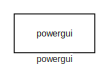
[diagram: root canvas - part 1/7, top center region]
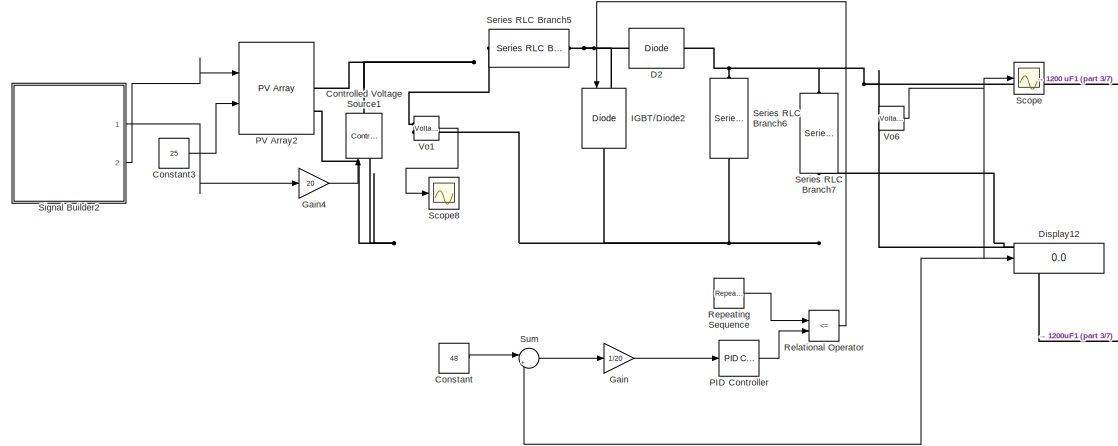
[diagram: root canvas - part 2/7, top left region]
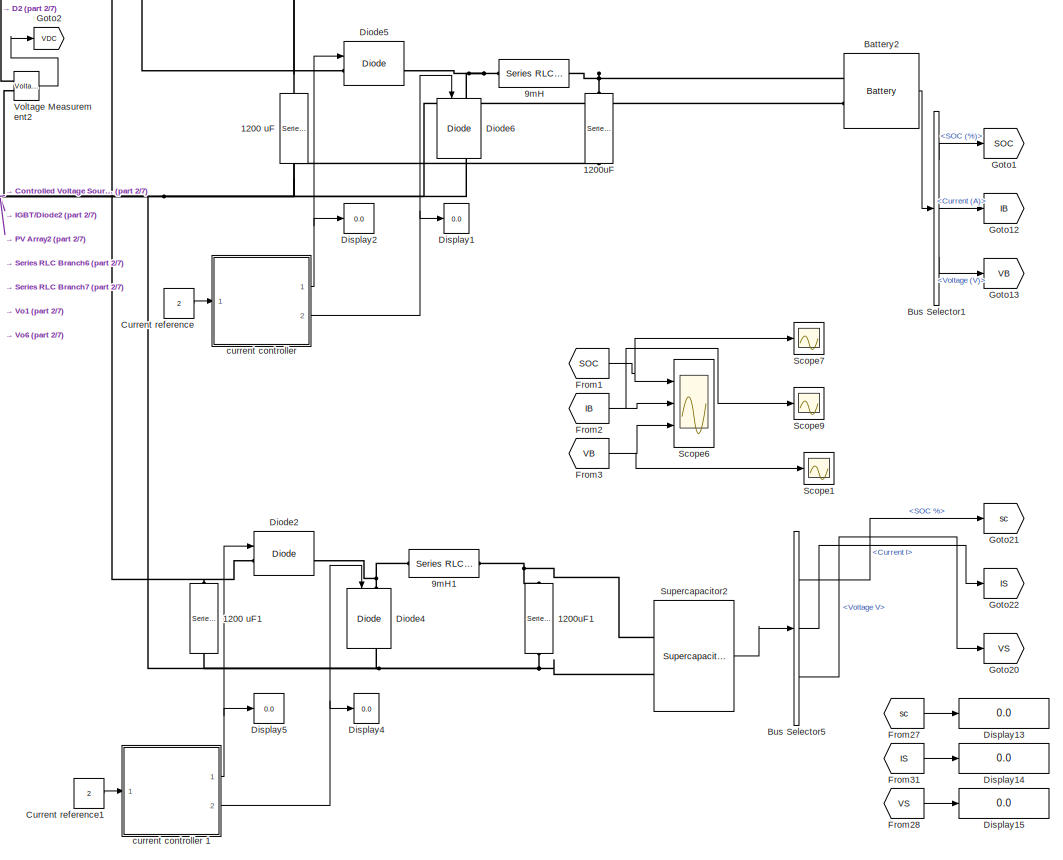
[diagram: root canvas - part 3/7, middle right region]
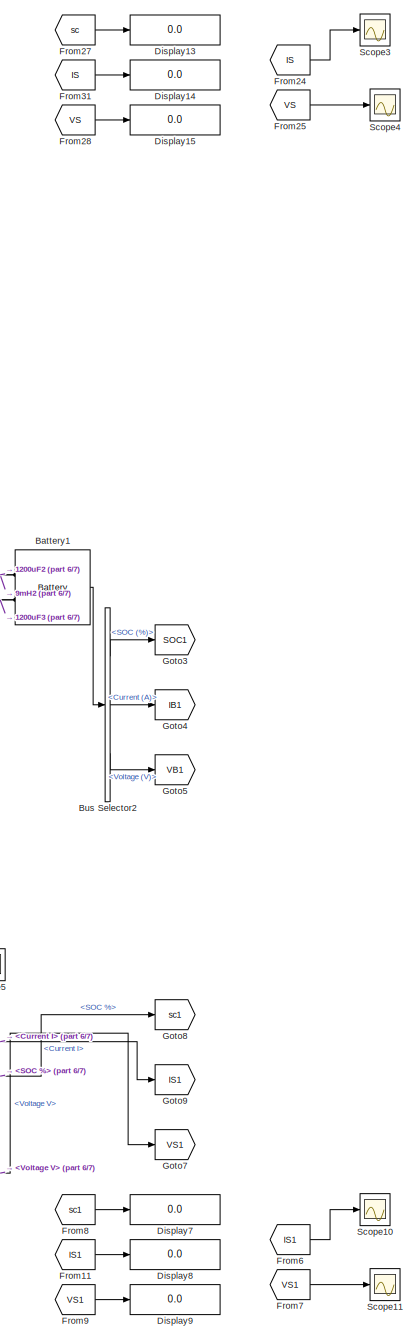
[diagram: root canvas - part 4/7, bottom right region]
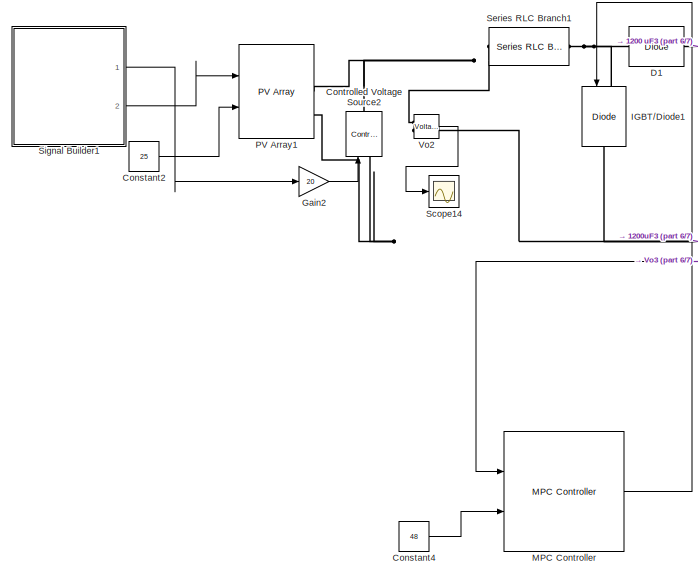
[diagram: root canvas - part 5/7, bottom left region]
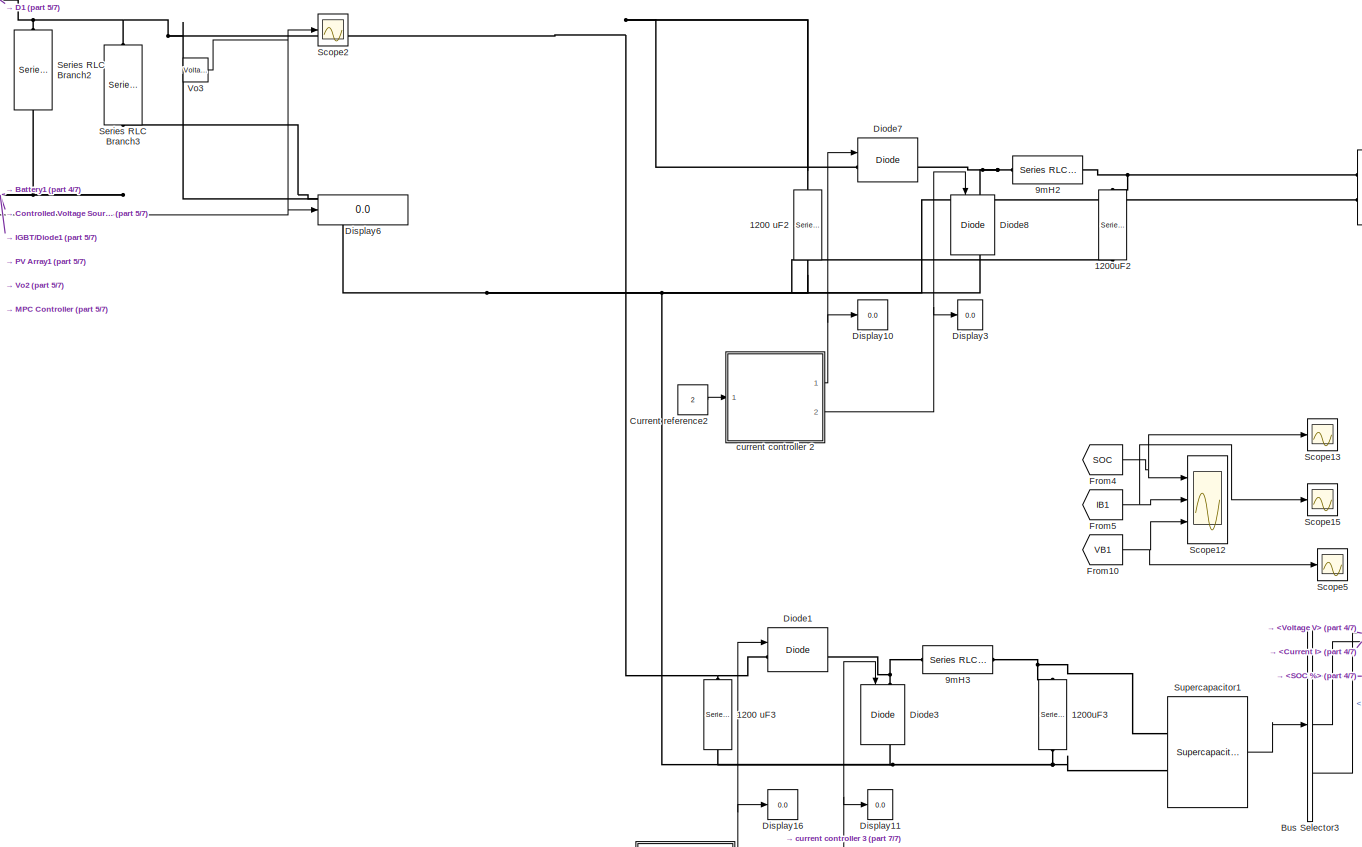
[diagram: root canvas - part 6/7, bottom center region]
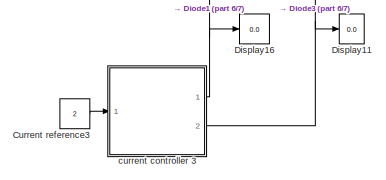
[diagram: root canvas - part 7/7, bottom center region]
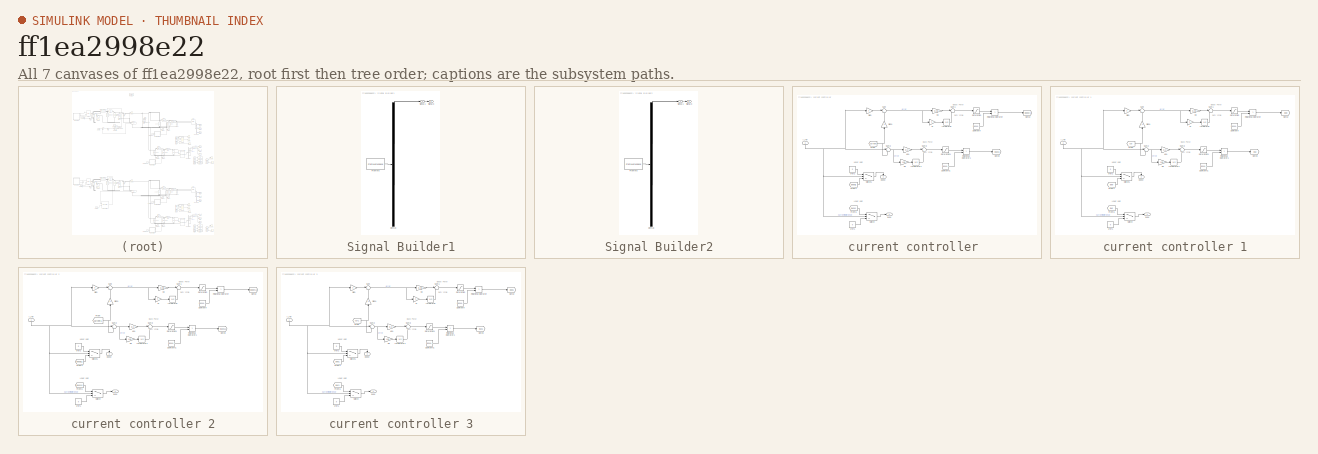
[diagram: thumbnail index - all 7 canvases of the model, root first then tree order]
MODEL slx_ff1ea2998e22
KIND model
CONFIG AbsTol = auto
CONFIG EnableMultiTasking = off
CONFIG FixedStep = auto
CONFIG MaxStep = auto
CONFIG MinStep = auto
CONFIG RelTol = 1e-3
CONFIG SampleTimeConstraint = Unconstrained
CONFIG Solver = VariableStepAuto
CONFIG SolverName = VariableStepAuto
CONFIG StartTime = 0.0
CONFIG StopTime = 2
BLOCK [Reference] 1200 uF  REF=powerlib/Elements/Series RLC Branch
  Ports = [0, 0, 0, 0, 0, 1, 1]
  SourceBlock = powerlib/Elements/Series RLC Branch
  SourceProductBaseCode = PS
  SourceProductName = Simscape Power Systems
  SourceType = Series RLC Branch
BLOCK [Reference] 1200 uF1  REF=powerlib/Elements/Series RLC Branch
  Ports = [0, 0, 0, 0, 0, 1, 1]
  SourceBlock = powerlib/Elements/Series RLC Branch
  SourceProductBaseCode = PS
  SourceProductName = Simscape Power Systems
  SourceType = Series RLC Branch
BLOCK [Reference] 1200 uF2  REF=powerlib/Elements/Series RLC Branch
  Ports = [0, 0, 0, 0, 0, 1, 1]
  SourceBlock = powerlib/Elements/Series RLC Branch
  SourceProductBaseCode = PS
  SourceProductName = Simscape Power Systems
  SourceType = Series RLC Branch
BLOCK [Reference] 1200 uF3  REF=powerlib/Elements/Series RLC Branch
  Ports = [0, 0, 0, 0, 0, 1, 1]
  SourceBlock = powerlib/Elements/Series RLC Branch
  SourceProductBaseCode = PS
  SourceProductName = Simscape Power Systems
  SourceType = Series RLC Branch
BLOCK [Reference] 1200uF  REF=powerlib/Elements/Series RLC Branch
  Ports = [0, 0, 0, 0, 0, 1, 1]
  SourceBlock = powerlib/Elements/Series RLC Branch
  SourceProductBaseCode = PS
  SourceProductName = Simscape Power Systems
  SourceType = Series RLC Branch
BLOCK [Reference] 1200uF1  REF=powerlib/Elements/Series RLC Branch
  Ports = [0, 0, 0, 0, 0, 1, 1]
  SourceBlock = powerlib/Elements/Series RLC Branch
  SourceProductBaseCode = PS
  SourceProductName = Simscape Power Systems
  SourceType = Series RLC Branch
BLOCK [Reference] 1200uF2  REF=powerlib/Elements/Series RLC Branch
  Ports = [0, 0, 0, 0, 0, 1, 1]
  SourceBlock = powerlib/Elements/Series RLC Branch
  SourceProductBaseCode = PS
  SourceProductName = Simscape Power Systems
  SourceType = Series RLC Branch
BLOCK [Reference] 1200uF3  REF=powerlib/Elements/Series RLC Branch
  Ports = [0, 0, 0, 0, 0, 1, 1]
  SourceBlock = powerlib/Elements/Series RLC Branch
  SourceProductBaseCode = PS
  SourceProductName = Simscape Power Systems
  SourceType = Series RLC Branch
BLOCK [Reference] 9mH  REF=powerlib/Elements/Series RLC Branch
  Ports = [0, 0, 0, 0, 0, 1, 1]
  SourceBlock = powerlib/Elements/Series RLC Branch
  SourceProductBaseCode = PS
  SourceProductName = Simscape Power Systems
  SourceType = Series RLC Branch
BLOCK [Reference] 9mH1  REF=powerlib/Elements/Series RLC Branch
  Ports = [0, 0, 0, 0, 0, 1, 1]
  SourceBlock = powerlib/Elements/Series RLC Branch
  SourceProductBaseCode = PS
  SourceProductName = Simscape Power Systems
  SourceType = Series RLC Branch
BLOCK [Reference] 9mH2  REF=powerlib/Elements/Series RLC Branch
  Ports = [0, 0, 0, 0, 0, 1, 1]
  SourceBlock = powerlib/Elements/Series RLC Branch
  SourceProductBaseCode = PS
  SourceProductName = Simscape Power Systems
  SourceType = Series RLC Branch
BLOCK [Reference] 9mH3  REF=powerlib/Elements/Series RLC Branch
  Ports = [0, 0, 0, 0, 0, 1, 1]
  SourceBlock = powerlib/Elements/Series RLC Branch
  SourceProductBaseCode = PS
  SourceProductName = Simscape Power Systems
  SourceType = Series RLC Branch
BLOCK [Reference] Battery1  REF=electricdrivelib/Extra Sources/Battery
  Ports = [0, 1, 0, 0, 0, 2]
  SourceBlock = electricdrivelib/Extra Sources/Battery
  SourceProductBaseCode = PS
  SourceProductName = Simscape Electrical
  SourceType = Battery
BLOCK [Reference] Battery2  REF=electricdrivelib/Extra Sources/Battery
  Ports = [0, 1, 0, 0, 0, 2]
  SourceBlock = electricdrivelib/Extra Sources/Battery
  SourceProductBaseCode = PS
  SourceProductName = Simscape Electrical
  SourceType = Battery
BLOCK [BusSelector] Bus Selector1
  OutputAsBus = off
  OutputSignals = SOC (%),Current (A),Voltage (V)
  Ports = [1, 3]
BLOCK [BusSelector] Bus Selector2
  OutputAsBus = off
  OutputSignals = SOC (%),Current (A),Voltage (V)
  Ports = [1, 3]
BLOCK [BusSelector] Bus Selector3
  OutputAsBus = off
  OutputSignals = SOC %,Current I,Voltage V
  Ports = [1, 3]
BLOCK [BusSelector] Bus Selector5
  OutputAsBus = off
  OutputSignals = SOC %,Current I,Voltage V
  Ports = [1, 3]
BLOCK [Constant] Constant
  Value = 48
BLOCK [Constant] Constant2
  Value = 25
BLOCK [Constant] Constant3
  Value = 25
BLOCK [Constant] Constant4
  Value = 48
BLOCK [Reference] Controlled Voltage Source1  REF=powerlib/Electrical
Sources/Controlled Voltage Source
  Ports = [1, 0, 0, 0, 0, 1, 1]
  SourceBlock = powerlib/Electrical\nSources/Controlled Voltage Source
  SourceProductBaseCode = PS
  SourceProductName = Simscape Electrical
  SourceType = Controlled Voltage Source
BLOCK [Reference] Controlled Voltage Source2  REF=powerlib/Electrical
Sources/Controlled Voltage Source
  Ports = [1, 0, 0, 0, 0, 1, 1]
  SourceBlock = powerlib/Electrical\nSources/Controlled Voltage Source
  SourceProductBaseCode = PS
  SourceProductName = Simscape Electrical
  SourceType = Controlled Voltage Source
BLOCK [Constant] Current reference
  Value = 2
BLOCK [Constant] Current reference1
  Value = 2
BLOCK [Constant] Current reference2
  Value = 2
BLOCK [Constant] Current reference3
  Value = 2
BLOCK [Reference] D1  REF=powerlib/Power
Electronics/Diode
  Ports = [0, 0, 0, 0, 0, 1, 1]
  SourceBlock = powerlib/Power\nElectronics/Diode
  SourceProductBaseCode = PS
  SourceProductName = Simscape Electrical
  SourceType = Diode
BLOCK [Reference] D2  REF=powerlib/Power
Electronics/Diode
  Ports = [0, 0, 0, 0, 0, 1, 1]
  SourceBlock = powerlib/Power\nElectronics/Diode
  SourceProductBaseCode = PS
  SourceProductName = Simscape Electrical
  SourceType = Diode
BLOCK [Reference] Diode1  REF=powerlib/Power
Electronics/IGBT//Diode
  Ports = [1, 1, 0, 0, 0, 1, 1]
  SourceBlock = powerlib/Power\nElectronics/IGBT//Diode
  SourceProductBaseCode = PS
  SourceProductName = Simscape Power Systems
  SourceType = IGBT/Diode
BLOCK [Reference] Diode2  REF=powerlib/Power
Electronics/IGBT//Diode
  Ports = [1, 1, 0, 0, 0, 1, 1]
  SourceBlock = powerlib/Power\nElectronics/IGBT//Diode
  SourceProductBaseCode = PS
  SourceProductName = Simscape Power Systems
  SourceType = IGBT/Diode
BLOCK [Reference] Diode3  REF=powerlib/Power
Electronics/IGBT//Diode
  Ports = [1, 1, 0, 0, 0, 1, 1]
  SourceBlock = powerlib/Power\nElectronics/IGBT//Diode
  SourceProductBaseCode = PS
  SourceProductName = Simscape Power Systems
  SourceType = IGBT/Diode
BLOCK [Reference] Diode4  REF=powerlib/Power
Electronics/IGBT//Diode
  Ports = [1, 1, 0, 0, 0, 1, 1]
  SourceBlock = powerlib/Power\nElectronics/IGBT//Diode
  SourceProductBaseCode = PS
  SourceProductName = Simscape Power Systems
  SourceType = IGBT/Diode
BLOCK [Reference] Diode5  REF=powerlib/Power
Electronics/IGBT//Diode
  Ports = [1, 1, 0, 0, 0, 1, 1]
  SourceBlock = powerlib/Power\nElectronics/IGBT//Diode
  SourceProductBaseCode = PS
  SourceProductName = Simscape Power Systems
  SourceType = IGBT/Diode
BLOCK [Reference] Diode6  REF=powerlib/Power
Electronics/IGBT//Diode
  Ports = [1, 1, 0, 0, 0, 1, 1]
  SourceBlock = powerlib/Power\nElectronics/IGBT//Diode
  SourceProductBaseCode = PS
  SourceProductName = Simscape Power Systems
  SourceType = IGBT/Diode
BLOCK [Reference] Diode7  REF=powerlib/Power
Electronics/IGBT//Diode
  Ports = [1, 1, 0, 0, 0, 1, 1]
  SourceBlock = powerlib/Power\nElectronics/IGBT//Diode
  SourceProductBaseCode = PS
  SourceProductName = Simscape Power Systems
  SourceType = IGBT/Diode
BLOCK [Reference] Diode8  REF=powerlib/Power
Electronics/IGBT//Diode
  Ports = [1, 1, 0, 0, 0, 1, 1]
  SourceBlock = powerlib/Power\nElectronics/IGBT//Diode
  SourceProductBaseCode = PS
  SourceProductName = Simscape Power Systems
  SourceType = IGBT/Diode
BLOCK [Display] Display1
  Decimation = 1
  Ports = [1]
BLOCK [Display] Display10
  Decimation = 1
  Ports = [1]
BLOCK [Display] Display11
  Decimation = 1
  Ports = [1]
BLOCK [Display] Display12
  Decimation = 1
  Ports = [1]
BLOCK [Display] Display13
  Decimation = 1
  Ports = [1]
BLOCK [Display] Display14
  Decimation = 1
  Ports = [1]
BLOCK [Display] Display15
  Decimation = 1
  Ports = [1]
BLOCK [Display] Display16
  Decimation = 1
  Ports = [1]
BLOCK [Display] Display2
  Decimation = 1
  Ports = [1]
BLOCK [Display] Display3
  Decimation = 1
  Ports = [1]
BLOCK [Display] Display4
  Decimation = 1
  Ports = [1]
BLOCK [Display] Display5
  Decimation = 1
  Ports = [1]
BLOCK [Display] Display6
  Decimation = 1
  Ports = [1]
BLOCK [Display] Display7
  Decimation = 1
  Ports = [1]
BLOCK [Display] Display8
  Decimation = 1
  Ports = [1]
BLOCK [Display] Display9
  Decimation = 1
  Ports = [1]
BLOCK [From] From1
  GotoTag = SOC
BLOCK [From] From10
  GotoTag = VB1
BLOCK [From] From11
  GotoTag = IS1
BLOCK [From] From2
  GotoTag = IB
BLOCK [From] From24
  GotoTag = IS
BLOCK [From] From25
  GotoTag = VS
BLOCK [From] From27
  GotoTag = sc
BLOCK [From] From28
  GotoTag = VS
BLOCK [From] From3
  GotoTag = VB
BLOCK [From] From31
  GotoTag = IS
BLOCK [From] From4
  GotoTag = SOC
BLOCK [From] From5
  GotoTag = IB1
BLOCK [From] From6
  GotoTag = IS1
BLOCK [From] From7
  GotoTag = VS1
BLOCK [From] From8
  GotoTag = sc1
BLOCK [From] From9
  GotoTag = VS1
BLOCK [Gain] Gain
  Gain = 1/20
  OutDataTypeStr = Inherit: Inherit via internal rule
  ParamDataTypeStr = Inherit: Inherit via internal rule
  SaturateOnIntegerOverflow = off
BLOCK [Gain] Gain2
  Gain = 20
  OutDataTypeStr = Inherit: Inherit via internal rule
  ParamDataTypeStr = Inherit: Inherit via internal rule
  SaturateOnIntegerOverflow = off
BLOCK [Gain] Gain4
  Gain = 20
  OutDataTypeStr = Inherit: Inherit via internal rule
  ParamDataTypeStr = Inherit: Inherit via internal rule
  SaturateOnIntegerOverflow = off
BLOCK [Goto] Goto1
  GotoTag = SOC
BLOCK [Goto] Goto12
  GotoTag = IB
BLOCK [Goto] Goto13
  GotoTag = VB
BLOCK [Goto] Goto2
  GotoTag = VDC
BLOCK [Goto] Goto20
  GotoTag = VS
BLOCK [Goto] Goto21
  GotoTag = sc
BLOCK [Goto] Goto22
  GotoTag = IS
BLOCK [Goto] Goto3
  GotoTag = SOC1
BLOCK [Goto] Goto4
  GotoTag = IB1
BLOCK [Goto] Goto5
  GotoTag = VB1
BLOCK [Goto] Goto7
  GotoTag = VS1
BLOCK [Goto] Goto8
  GotoTag = sc1
BLOCK [Goto] Goto9
  GotoTag = IS1
BLOCK [Reference] IGBT//Diode1  REF=powerlib/Power
Electronics/IGBT//Diode
  Ports = [1, 0, 0, 0, 0, 1, 1]
  SourceBlock = powerlib/Power\nElectronics/IGBT//Diode
  SourceProductBaseCode = PS
  SourceProductName = Simscape Electrical
  SourceType = IGBT/Diode
BLOCK [Reference] IGBT//Diode2  REF=powerlib/Power
Electronics/IGBT//Diode
  Ports = [1, 0, 0, 0, 0, 1, 1]
  SourceBlock = powerlib/Power\nElectronics/IGBT//Diode
  SourceProductBaseCode = PS
  SourceProductName = Simscape Electrical
  SourceType = IGBT/Diode
BLOCK [Reference] MPC Controller  REF=mpclib/MPC Controller  (lib defined in mdl_ae329e0e0455)
  Ports = [2, 1]
  SCDEnableBlockLinearizationSpecification = on
  SourceBlock = mpclib/MPC Controller
  SourceProductBaseCode = MP
  SourceProductName = Model Predictive Control Toolbox
  SourceType = MPC
BLOCK [Reference] PID Controller  REF=simulink/Continuous/PID Controller
  Ports = [1, 1]
  SourceBlock = simulink/Continuous/PID Controller
  SourceProductBaseCode = SL
  SourceProductName = Simulink
  SourceType = PID 1dof
BLOCK [Reference] PV Array1  REF=re_lib/Solar/PV Array
  Ports = [2, 1, 0, 0, 0, 0, 2]
  SourceBlock = re_lib/Solar/PV Array
  SourceProductBaseCode = PS
  SourceProductName = Simscape Electrical
  SourceType = PV array
BLOCK [Reference] PV Array2  REF=re_lib/Solar/PV Array
  Ports = [2, 1, 0, 0, 0, 0, 2]
  SourceBlock = re_lib/Solar/PV Array
  SourceProductBaseCode = PS
  SourceProductName = Simscape Electrical
  SourceType = PV array
BLOCK [RelationalOperator] Relational Operator
  InputSameDT = off
  Operator = <=
  OutDataTypeStr = boolean
  Ports = [2, 1]
  RndMeth = Simplest
BLOCK [Reference] Repeating Sequence  REF=simulink/Sources/Repeating
Sequence
  Ports = [0, 1]
  SourceBlock = simulink/Sources/Repeating\nSequence
  SourceProductBaseCode = SL
  SourceProductName = Simulink
  SourceType = Repeating table
BLOCK [Scope] Scope
  Floating = off
  NumInputPorts = 1
  Ports = [1]
  ScopeSpecificationString = Simulink.scopes.TimeScopeBlockCfg('CurrentConfiguration', extmgr.ConfigurationSet(extmgr.Configuration('Core','General UI',true),extmgr.Configuration('Core','Source UI',true),extmgr.Configuration('Sources','WiredSimulink',true,'DataLoggingVariableName','ScopeData3'),extmgr.Configuration('Visuals','Time Domain',true,'SerializedDisplays',{struct('MinYLimReal','-10.92676','MaxYLimReal','98.78413','YL...<+1419ch>
BLOCK [Scope] Scope1
  Floating = off
  NumInputPorts = 1
  Ports = [1]
  ScopeSpecificationString = Simulink.scopes.TimeScopeBlockCfg('CurrentConfiguration', extmgr.ConfigurationSet(extmgr.Configuration('Core','General UI',true),extmgr.Configuration('Core','Source UI',true),extmgr.Configuration('Sources','WiredSimulink',true,'DataLoggingVariableName','ScopeData9'),extmgr.Configuration('Visuals','Time Domain',true,'SerializedDisplays',{struct('MinYLimReal','-4.99427','MaxYLimReal','44.95648','YLa...<+1454ch>
BLOCK [Scope] Scope10
  Floating = off
  NumInputPorts = 1
  Ports = [1]
  ScopeSpecificationString = Simulink.scopes.TimeScopeBlockCfg('CurrentConfiguration', extmgr.ConfigurationSet(extmgr.Configuration('Core','General UI',true),extmgr.Configuration('Core','Source UI',true),extmgr.Configuration('Sources','WiredSimulink',true,'DataLoggingVariableName','ScopeData1'),extmgr.Configuration('Visuals','Time Domain',true,'SerializedDisplays',{struct('MinYLimReal','-7.1755','MaxYLimReal','14.59631','YLab...<+1516ch>
BLOCK [Scope] Scope11
  Floating = off
  NumInputPorts = 1
  Ports = [1]
  ScopeSpecificationString = Simulink.scopes.TimeScopeBlockCfg('CurrentConfiguration', extmgr.ConfigurationSet(extmgr.Configuration('Core','General UI',true),extmgr.Configuration('Core','Source UI',true),extmgr.Configuration('Sources','WiredSimulink',true,'DataLoggingVariableName','ScopeData2'),extmgr.Configuration('Visuals','Time Domain',true,'SerializedDisplays',{struct('MinYLimReal','-7.61444','MaxYLimReal','68.72994','YLa...<+1500ch>
BLOCK [Scope] Scope12
  Floating = off
  NumInputPorts = 3
  Ports = [3]
  ScopeSpecificationString = Simulink.scopes.TimeScopeBlockCfg('CurrentConfiguration', extmgr.ConfigurationSet(extmgr.Configuration('Core','General UI',true),extmgr.Configuration('Core','Source UI',true),extmgr.Configuration('Sources','WiredSimulink',true,'DataLoggingVariableName','ScopeData3'),extmgr.Configuration('Visuals','Time Domain',true,'SerializedDisplays',{struct('MinYLimReal','49.99245','MaxYLimReal','50.00084','YLa...<+2696ch>
BLOCK [Scope] Scope13
  Floating = off
  NumInputPorts = 1
  Ports = [1]
  ScopeSpecificationString = Simulink.scopes.TimeScopeBlockCfg('CurrentConfiguration', extmgr.ConfigurationSet(extmgr.Configuration('Core','General UI',true),extmgr.Configuration('Core','Source UI',true),extmgr.Configuration('Sources','WiredSimulink',true,'DataLoggingVariableName','ScopeData4'),extmgr.Configuration('Visuals','Time Domain',true,'SerializedDisplays',{struct('MinYLimReal','49.99993','MaxYLimReal','50.00046','YLa...<+1399ch>
BLOCK [Scope] Scope14
  Floating = off
  NumInputPorts = 1
  Ports = [1]
  ScopeSpecificationString = Simulink.scopes.TimeScopeBlockCfg('CurrentConfiguration', extmgr.ConfigurationSet(extmgr.Configuration('Core','General UI',true),extmgr.Configuration('Core','Source UI',true),extmgr.Configuration('Sources','WiredSimulink',true,'DataLoggingVariableName','ScopeData5'),extmgr.Configuration('Visuals','Time Domain',true,'SerializedDisplays',{struct('MinYLimReal','8.925','MaxYLimReal','17.675','YLabelRe...<+1392ch>
BLOCK [Scope] Scope15
  Floating = off
  NumInputPorts = 1
  Ports = [1]
  ScopeSpecificationString = Simulink.scopes.TimeScopeBlockCfg('CurrentConfiguration', extmgr.ConfigurationSet(extmgr.Configuration('Core','General UI',true),extmgr.Configuration('Core','Source UI',true),extmgr.Configuration('Sources','WiredSimulink',true,'DataLoggingVariableName','ScopeData6'),extmgr.Configuration('Visuals','Time Domain',true,'SerializedDisplays',{struct('MinYLimReal','-20.52275','MaxYLimReal','4.42864','YLa...<+1500ch>
BLOCK [Scope] Scope2
  Floating = off
  NumInputPorts = 1
  Ports = [1]
  ScopeSpecificationString = Simulink.scopes.TimeScopeBlockCfg('CurrentConfiguration', extmgr.ConfigurationSet(extmgr.Configuration('Core','General UI',true),extmgr.Configuration('Core','Source UI',true),extmgr.Configuration('Sources','WiredSimulink',true,'DataLoggingVariableName','ScopeData7'),extmgr.Configuration('Visuals','Time Domain',true,'SerializedDisplays',{struct('MinYLimReal','-9.10174','MaxYLimReal','83.99665','YLa...<+1417ch>
BLOCK [Scope] Scope3
  Floating = off
  NumInputPorts = 1
  Ports = [1]
  ScopeSpecificationString = Simulink.scopes.TimeScopeBlockCfg('CurrentConfiguration', extmgr.ConfigurationSet(extmgr.Configuration('Core','General UI',true),extmgr.Configuration('Core','Source UI',true),extmgr.Configuration('Sources','WiredSimulink',true,'DataLoggingVariableName','ScopeData13'),extmgr.Configuration('Visuals','Time Domain',true,'SerializedDisplays',{struct('MinYLimReal','-8.12715','MaxYLimReal','2.23103','YLa...<+1515ch>
BLOCK [Scope] Scope4
  Floating = off
  NumInputPorts = 1
  Ports = [1]
  ScopeSpecificationString = Simulink.scopes.TimeScopeBlockCfg('CurrentConfiguration', extmgr.ConfigurationSet(extmgr.Configuration('Core','General UI',true),extmgr.Configuration('Core','Source UI',true),extmgr.Configuration('Sources','WiredSimulink',true,'DataLoggingVariableName','ScopeData14'),extmgr.Configuration('Visuals','Time Domain',true,'SerializedDisplays',{struct('MinYLimReal','-7.61444','MaxYLimReal','68.72994','YL...<+1501ch>
BLOCK [Scope] Scope5
  Floating = off
  NumInputPorts = 1
  Ports = [1]
  ScopeSpecificationString = Simulink.scopes.TimeScopeBlockCfg('CurrentConfiguration', extmgr.ConfigurationSet(extmgr.Configuration('Core','General UI',true),extmgr.Configuration('Core','Source UI',true),extmgr.Configuration('Sources','WiredSimulink',true,'DataLoggingVariableName','ScopeData8'),extmgr.Configuration('Visuals','Time Domain',true,'SerializedDisplays',{struct('MinYLimReal','-4.85813','MaxYLimReal','43.73123','YLa...<+1454ch>
BLOCK [Scope] Scope6
  Floating = off
  NumInputPorts = 3
  Ports = [3]
  ScopeSpecificationString = Simulink.scopes.TimeScopeBlockCfg('CurrentConfiguration', extmgr.ConfigurationSet(extmgr.Configuration('Core','General UI',true),extmgr.Configuration('Core','Source UI',true),extmgr.Configuration('Sources','WiredSimulink',true,'DataLoggingVariableName','ScopeData10'),extmgr.Configuration('Visuals','Time Domain',true,'SerializedDisplays',{struct('MinYLimReal','49.99245','MaxYLimReal','50.00084','YL...<+2697ch>
BLOCK [Scope] Scope7
  Floating = off
  NumInputPorts = 1
  Ports = [1]
  ScopeSpecificationString = Simulink.scopes.TimeScopeBlockCfg('CurrentConfiguration', extmgr.ConfigurationSet(extmgr.Configuration('Core','General UI',true),extmgr.Configuration('Core','Source UI',true),extmgr.Configuration('Sources','WiredSimulink',true,'DataLoggingVariableName','ScopeData11'),extmgr.Configuration('Visuals','Time Domain',true,'SerializedDisplays',{struct('MinYLimReal','49.99993','MaxYLimReal','50.00046','YL...<+1400ch>
BLOCK [Scope] Scope8
  Floating = off
  NumInputPorts = 1
  Ports = [1]
  ScopeSpecificationString = Simulink.scopes.TimeScopeBlockCfg('CurrentConfiguration', extmgr.ConfigurationSet(extmgr.Configuration('Core','General UI',true),extmgr.Configuration('Core','Source UI',true),extmgr.Configuration('Sources','WiredSimulink',true,'DataLoggingVariableName','ScopeData2'),extmgr.Configuration('Visuals','Time Domain',true,'SerializedDisplays',{struct('MinYLimReal','8.925','MaxYLimReal','17.675','YLabelRe...<+1392ch>
BLOCK [Scope] Scope9
  Floating = off
  NumInputPorts = 1
  Ports = [1]
  ScopeSpecificationString = Simulink.scopes.TimeScopeBlockCfg('CurrentConfiguration', extmgr.ConfigurationSet(extmgr.Configuration('Core','General UI',true),extmgr.Configuration('Core','Source UI',true),extmgr.Configuration('Sources','WiredSimulink',true,'DataLoggingVariableName','ScopeData12'),extmgr.Configuration('Visuals','Time Domain',true,'SerializedDisplays',{struct('MinYLimReal','-20.52275','MaxYLimReal','4.42864','YL...<+1501ch>
BLOCK [Reference] Series RLC Branch1  REF=powerlib/Elements/Series RLC Branch
  Ports = [0, 0, 0, 0, 0, 1, 1]
  SourceBlock = powerlib/Elements/Series RLC Branch
  SourceProductBaseCode = PS
  SourceProductName = Simscape Electrical
  SourceType = Series RLC Branch
BLOCK [Reference] Series RLC Branch2  REF=powerlib/Elements/Series RLC Branch
  Ports = [0, 0, 0, 0, 0, 1, 1]
  SourceBlock = powerlib/Elements/Series RLC Branch
  SourceProductBaseCode = PS
  SourceProductName = Simscape Electrical
  SourceType = Series RLC Branch
BLOCK [Reference] Series RLC Branch3  REF=powerlib/Elements/Series RLC Branch
  Ports = [0, 0, 0, 0, 0, 1, 1]
  SourceBlock = powerlib/Elements/Series RLC Branch
  SourceProductBaseCode = PS
  SourceProductName = Simscape Electrical
  SourceType = Series RLC Branch
BLOCK [Reference] Series RLC Branch5  REF=powerlib/Elements/Series RLC Branch
  Ports = [0, 0, 0, 0, 0, 1, 1]
  SourceBlock = powerlib/Elements/Series RLC Branch
  SourceProductBaseCode = PS
  SourceProductName = Simscape Electrical
  SourceType = Series RLC Branch
BLOCK [Reference] Series RLC Branch6  REF=powerlib/Elements/Series RLC Branch
  Ports = [0, 0, 0, 0, 0, 1, 1]
  SourceBlock = powerlib/Elements/Series RLC Branch
  SourceProductBaseCode = PS
  SourceProductName = Simscape Electrical
  SourceType = Series RLC Branch
BLOCK [Reference] Series RLC Branch7  REF=powerlib/Elements/Series RLC Branch
  Ports = [0, 0, 0, 0, 0, 1, 1]
  SourceBlock = powerlib/Elements/Series RLC Branch
  SourceProductBaseCode = PS
  SourceProductName = Simscape Electrical
  SourceType = Series RLC Branch
BLOCK [SubSystem] Signal Builder1
  ClipboardFcn = sigbuilder_block('clipboard');
  CloseFcn = sigbuilder_block('close');
  ContinueFcn = sigbuilder_block('continue');
  CopyFcn = sigbuilder_block('copy');
  DeleteFcn = sigbuilder_block('delete');
  LoadFcn = sigbuilder_block('load');
  MaskHideContents = on
  ModelCloseFcn = sigbuilder_block('modelClose');
  NameChangeFcn = sigbuilder_block('namechange');
  OpenFcn = sigbuilder_block('open',[437.6 153 550.4 359.25 ]);
  PauseFcn = sigbuilder_block('pause');
  Ports = [0, 2]
  PreSaveFcn = sigbuilder_block('preSave');
  RequestExecContextInheritance = off
  StartFcn = sigbuilder_block('start');
  StopFcn = sigbuilder_block('stop');
  Tag = STV Subsys
BLOCK [Demux] Signal Builder1/Demux
  Outputs = 2
  Ports = [1, 2]
  Tag = STV Demux
BLOCK [FromWorkspace] Signal Builder1/FromWs
  SampleTime = 0
  Tag = STV FromWs
  VariableName = tuvar
  ZeroCross = on
BLOCK [Outport] Signal Builder1/Signal 1
  IconDisplay = Port number
  Tag = STV Outport
BLOCK [Outport] Signal Builder1/Signal 3
  IconDisplay = Port number
  Port = 2
  Tag = STV Outport
BLOCK [SubSystem] Signal Builder2
  ClipboardFcn = sigbuilder_block('clipboard');
  CloseFcn = sigbuilder_block('close');
  ContinueFcn = sigbuilder_block('continue');
  CopyFcn = sigbuilder_block('copy');
  DeleteFcn = sigbuilder_block('delete');
  LoadFcn = sigbuilder_block('load');
  MaskHideContents = on
  ModelCloseFcn = sigbuilder_block('modelClose');
  NameChangeFcn = sigbuilder_block('namechange');
  OpenFcn = sigbuilder_block('open',[437.6 153 550.4 359.25 ]);
  PauseFcn = sigbuilder_block('pause');
  Ports = [0, 2]
  PreSaveFcn = sigbuilder_block('preSave');
  RequestExecContextInheritance = off
  StartFcn = sigbuilder_block('start');
  StopFcn = sigbuilder_block('stop');
  Tag = STV Subsys
BLOCK [Demux] Signal Builder2/Demux
  Outputs = 2
  Ports = [1, 2]
  Tag = STV Demux
BLOCK [FromWorkspace] Signal Builder2/FromWs
  SampleTime = 0
  Tag = STV FromWs
  VariableName = tuvar
  ZeroCross = on
BLOCK [Outport] Signal Builder2/Signal 1
  IconDisplay = Port number
  Tag = STV Outport
BLOCK [Outport] Signal Builder2/Signal 3
  IconDisplay = Port number
  Port = 2
  Tag = STV Outport
BLOCK [Sum] Sum
  IconShape = round
  InputSameDT = off
  Inputs = |+-
  OutDataTypeStr = Inherit: Inherit via internal rule
  Ports = [2, 1]
  SaturateOnIntegerOverflow = off
BLOCK [Reference] Supercapacitor1  REF=electricdrivelib/Extra Sources/Supercapacitor
  Ports = [0, 1, 0, 0, 0, 2]
  SourceBlock = electricdrivelib/Extra Sources/Supercapacitor
  SourceProductBaseCode = PS
  SourceProductName = Simscape Power Systems
  SourceType = Supercapacitor
BLOCK [Reference] Supercapacitor2  REF=electricdrivelib/Extra Sources/Supercapacitor
  Ports = [0, 1, 0, 0, 0, 2]
  SourceBlock = electricdrivelib/Extra Sources/Supercapacitor
  SourceProductBaseCode = PS
  SourceProductName = Simscape Power Systems
  SourceType = Supercapacitor
BLOCK [Reference] Vo1  REF=powerlib/Measurements/Voltage Measurement
  Ports = [0, 1, 0, 0, 0, 2]
  SourceBlock = powerlib/Measurements/Voltage Measurement
  SourceProductBaseCode = PS
  SourceProductName = Simscape Electrical
  SourceType = Voltage Measurement
BLOCK [Reference] Vo2  REF=powerlib/Measurements/Voltage Measurement
  Ports = [0, 1, 0, 0, 0, 2]
  SourceBlock = powerlib/Measurements/Voltage Measurement
  SourceProductBaseCode = PS
  SourceProductName = Simscape Electrical
  SourceType = Voltage Measurement
BLOCK [Reference] Vo3  REF=powerlib/Measurements/Voltage Measurement
  Ports = [0, 1, 0, 0, 0, 2]
  SourceBlock = powerlib/Measurements/Voltage Measurement
  SourceProductBaseCode = PS
  SourceProductName = Simscape Electrical
  SourceType = Voltage Measurement
BLOCK [Reference] Vo6  REF=powerlib/Measurements/Voltage Measurement
  Ports = [0, 1, 0, 0, 0, 2]
  SourceBlock = powerlib/Measurements/Voltage Measurement
  SourceProductBaseCode = PS
  SourceProductName = Simscape Electrical
  SourceType = Voltage Measurement
BLOCK [Reference] Voltage Measurement2  REF=powerlib/Measurements/Voltage Measurement
  Ports = [0, 1, 0, 0, 0, 2]
  SourceBlock = powerlib/Measurements/Voltage Measurement
  SourceProductBaseCode = PS
  SourceProductName = Simscape Electrical
  SourceType = Voltage Measurement
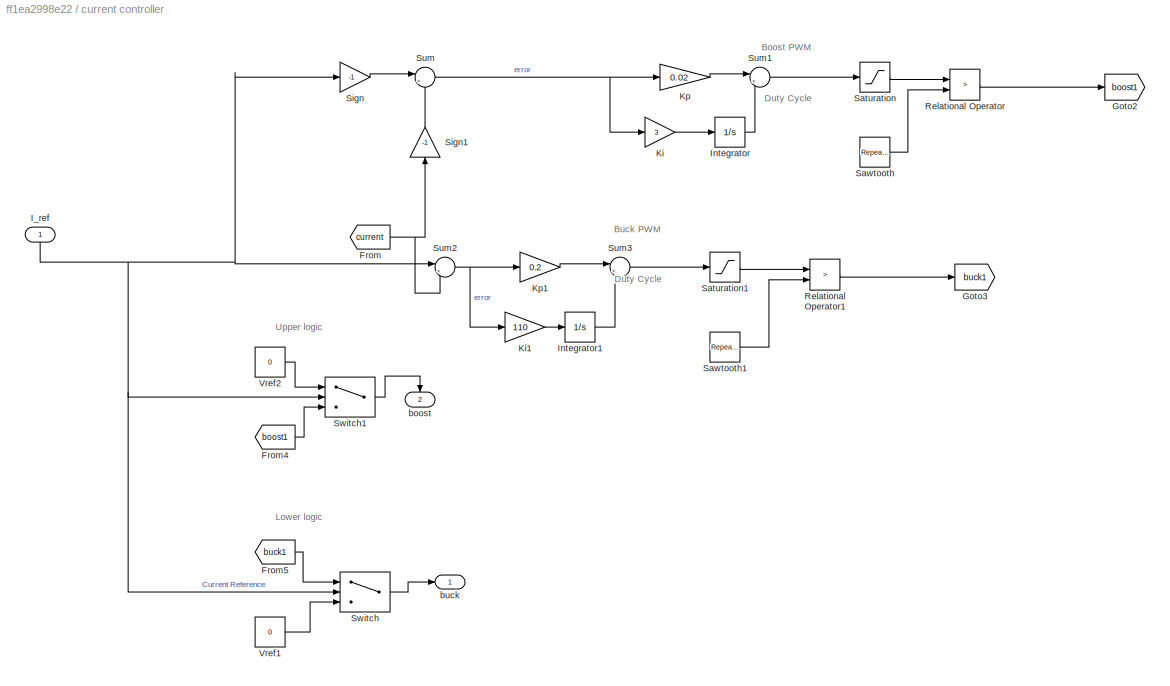
BLOCK [SubSystem] current controller 
  Ports = [1, 2]
  RequestExecContextInheritance = off
BLOCK [From] current controller /From
  GotoTag = current
BLOCK [From] current controller /From4
  GotoTag = boost1
  TagVisibility = global
BLOCK [From] current controller /From5
  GotoTag = buck1
  TagVisibility = global
BLOCK [Goto] current controller /Goto2
  GotoTag = boost1
  TagVisibility = global
BLOCK [Goto] current controller /Goto3
  GotoTag = buck1
  TagVisibility = global
BLOCK [Inport] current controller /I_ref
  IconDisplay = Port number
BLOCK [Integrator] current controller /Integrator
  LimitOutput = on
  LowerSaturationLimit = 0
  Ports = [1, 1]
  UpperSaturationLimit = 0.9
BLOCK [Integrator] current controller /Integrator1
  LimitOutput = on
  LowerSaturationLimit = 0
  Ports = [1, 1]
  UpperSaturationLimit = 0.9
BLOCK [Gain] current controller /Ki
  Gain = 3
  OutDataTypeStr = Inherit: Inherit via internal rule
  ParamDataTypeStr = Inherit: Inherit via internal rule
  SaturateOnIntegerOverflow = off
BLOCK [Gain] current controller /Ki1
  Gain = 110
  OutDataTypeStr = Inherit: Inherit via internal rule
  ParamDataTypeStr = Inherit: Inherit via internal rule
  SaturateOnIntegerOverflow = off
BLOCK [Gain] current controller /Kp
  Gain = 0.02
  OutDataTypeStr = Inherit: Inherit via internal rule
  ParamDataTypeStr = Inherit: Inherit via internal rule
  SaturateOnIntegerOverflow = off
BLOCK [Gain] current controller /Kp1
  Gain = 0.2
  OutDataTypeStr = Inherit: Inherit via internal rule
  ParamDataTypeStr = Inherit: Inherit via internal rule
  SaturateOnIntegerOverflow = off
BLOCK [RelationalOperator] current controller /Relational Operator
  InputSameDT = off
  Operator = >
  OutDataTypeStr = boolean
  Ports = [2, 1]
BLOCK [RelationalOperator] current controller /Relational Operator1
  InputSameDT = off
  Operator = >
  OutDataTypeStr = boolean
  Ports = [2, 1]
BLOCK [Saturate] current controller /Saturation
  InputPortMap = u0
  LowerLimit = 0
  Ports = [1, 1]
  UpperLimit = 0.9
BLOCK [Saturate] current controller /Saturation1
  InputPortMap = u0
  LowerLimit = 0
  Ports = [1, 1]
  UpperLimit = 0.8
BLOCK [Reference] current controller /Sawtooth  REF=simulink/Sources/Repeating
Sequence
  Ports = [0, 1]
  SourceBlock = simulink/Sources/Repeating\nSequence
  SourceProductBaseCode = SL
  SourceProductName = Simulink
  SourceType = Repeating table
BLOCK [Reference] current controller /Sawtooth1  REF=simulink/Sources/Repeating
Sequence
  Ports = [0, 1]
  SourceBlock = simulink/Sources/Repeating\nSequence
  SourceProductBaseCode = SL
  SourceProductName = Simulink
  SourceType = Repeating table
BLOCK [Gain] current controller /Sign
  Gain = -1
  OutDataTypeStr = Inherit: Inherit via internal rule
  ParamDataTypeStr = Inherit: Inherit via internal rule
  SaturateOnIntegerOverflow = off
BLOCK [Gain] current controller /Sign1
  Gain = -1
  OutDataTypeStr = Inherit: Inherit via internal rule
  ParamDataTypeStr = Inherit: Inherit via internal rule
  SaturateOnIntegerOverflow = off
BLOCK [Sum] current controller /Sum
  IconShape = round
  InputSameDT = off
  Inputs = |+-
  OutDataTypeStr = Inherit: Inherit via internal rule
  Ports = [2, 1]
  SaturateOnIntegerOverflow = off
BLOCK [Sum] current controller /Sum1
  IconShape = round
  InputSameDT = off
  Inputs = |++
  OutDataTypeStr = Inherit: Inherit via internal rule
  Ports = [2, 1]
  SaturateOnIntegerOverflow = off
BLOCK [Sum] current controller /Sum2
  IconShape = round
  InputSameDT = off
  Inputs = |+-
  OutDataTypeStr = Inherit: Inherit via internal rule
  Ports = [2, 1]
  SaturateOnIntegerOverflow = off
BLOCK [Sum] current controller /Sum3
  IconShape = round
  InputSameDT = off
  Inputs = |++
  OutDataTypeStr = Inherit: Inherit via internal rule
  Ports = [2, 1]
  SaturateOnIntegerOverflow = off
BLOCK [Switch] current controller /Switch
  Criteria = u2 > Threshold
  InputSameDT = off
  SaturateOnIntegerOverflow = off
BLOCK [Switch] current controller /Switch1
  InputSameDT = off
  SaturateOnIntegerOverflow = off
BLOCK [Constant] current controller /Vref1
  Value = 0
BLOCK [Constant] current controller /Vref2
  Value = 0
BLOCK [Outport] current controller /boost
  IconDisplay = Port number
  Port = 2
BLOCK [Outport] current controller /buck
  IconDisplay = Port number
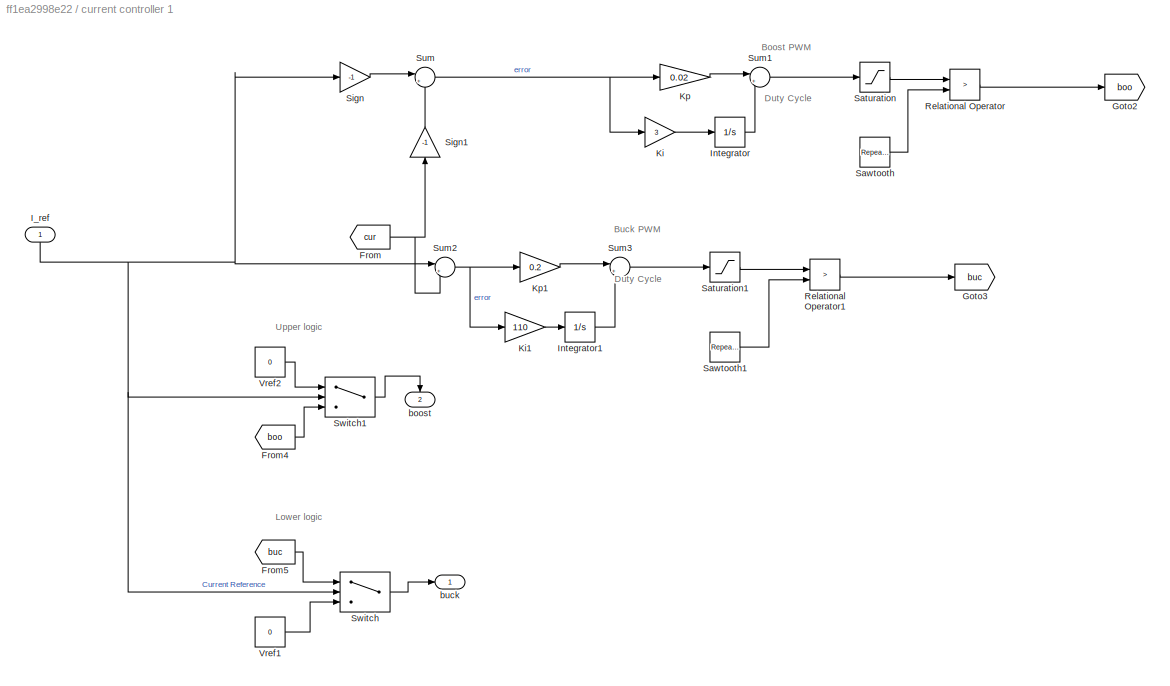
BLOCK [SubSystem] current controller 1
  Ports = [1, 2]
  RequestExecContextInheritance = off
BLOCK [From] current controller 1/From
  GotoTag = cur
BLOCK [From] current controller 1/From4
  GotoTag = boo
  TagVisibility = global
BLOCK [From] current controller 1/From5
  GotoTag = buc
  TagVisibility = global
BLOCK [Goto] current controller 1/Goto2
  GotoTag = boo
  TagVisibility = global
BLOCK [Goto] current controller 1/Goto3
  GotoTag = buc
  TagVisibility = global
BLOCK [Inport] current controller 1/I_ref
  IconDisplay = Port number
BLOCK [Integrator] current controller 1/Integrator
  LimitOutput = on
  LowerSaturationLimit = 0
  Ports = [1, 1]
  UpperSaturationLimit = 0.9
BLOCK [Integrator] current controller 1/Integrator1
  LimitOutput = on
  LowerSaturationLimit = 0
  Ports = [1, 1]
  UpperSaturationLimit = 0.9
BLOCK [Gain] current controller 1/Ki
  Gain = 3
  OutDataTypeStr = Inherit: Inherit via internal rule
  ParamDataTypeStr = Inherit: Inherit via internal rule
  SaturateOnIntegerOverflow = off
BLOCK [Gain] current controller 1/Ki1
  Gain = 110
  OutDataTypeStr = Inherit: Inherit via internal rule
  ParamDataTypeStr = Inherit: Inherit via internal rule
  SaturateOnIntegerOverflow = off
BLOCK [Gain] current controller 1/Kp
  Gain = 0.02
  OutDataTypeStr = Inherit: Inherit via internal rule
  ParamDataTypeStr = Inherit: Inherit via internal rule
  SaturateOnIntegerOverflow = off
BLOCK [Gain] current controller 1/Kp1
  Gain = 0.2
  OutDataTypeStr = Inherit: Inherit via internal rule
  ParamDataTypeStr = Inherit: Inherit via internal rule
  SaturateOnIntegerOverflow = off
BLOCK [RelationalOperator] current controller 1/Relational Operator
  InputSameDT = off
  Operator = >
  OutDataTypeStr = boolean
  Ports = [2, 1]
BLOCK [RelationalOperator] current controller 1/Relational Operator1
  InputSameDT = off
  Operator = >
  OutDataTypeStr = boolean
  Ports = [2, 1]
BLOCK [Saturate] current controller 1/Saturation
  InputPortMap = u0
  LowerLimit = 0
  Ports = [1, 1]
  UpperLimit = 0.9
BLOCK [Saturate] current controller 1/Saturation1
  InputPortMap = u0
  LowerLimit = 0
  Ports = [1, 1]
  UpperLimit = 0.8
BLOCK [Reference] current controller 1/Sawtooth  REF=simulink/Sources/Repeating
Sequence
  Ports = [0, 1]
  SourceBlock = simulink/Sources/Repeating\nSequence
  SourceProductBaseCode = SL
  SourceProductName = Simulink
  SourceType = Repeating table
BLOCK [Reference] current controller 1/Sawtooth1  REF=simulink/Sources/Repeating
Sequence
  Ports = [0, 1]
  SourceBlock = simulink/Sources/Repeating\nSequence
  SourceProductBaseCode = SL
  SourceProductName = Simulink
  SourceType = Repeating table
BLOCK [Gain] current controller 1/Sign
  Gain = -1
  OutDataTypeStr = Inherit: Inherit via internal rule
  ParamDataTypeStr = Inherit: Inherit via internal rule
  SaturateOnIntegerOverflow = off
BLOCK [Gain] current controller 1/Sign1
  Gain = -1
  OutDataTypeStr = Inherit: Inherit via internal rule
  ParamDataTypeStr = Inherit: Inherit via internal rule
  SaturateOnIntegerOverflow = off
BLOCK [Sum] current controller 1/Sum
  IconShape = round
  InputSameDT = off
  Inputs = |+-
  OutDataTypeStr = Inherit: Inherit via internal rule
  Ports = [2, 1]
  SaturateOnIntegerOverflow = off
BLOCK [Sum] current controller 1/Sum1
  IconShape = round
  InputSameDT = off
  Inputs = |++
  OutDataTypeStr = Inherit: Inherit via internal rule
  Ports = [2, 1]
  SaturateOnIntegerOverflow = off
BLOCK [Sum] current controller 1/Sum2
  IconShape = round
  InputSameDT = off
  Inputs = |+-
  OutDataTypeStr = Inherit: Inherit via internal rule
  Ports = [2, 1]
  SaturateOnIntegerOverflow = off
BLOCK [Sum] current controller 1/Sum3
  IconShape = round
  InputSameDT = off
  Inputs = |++
  OutDataTypeStr = Inherit: Inherit via internal rule
  Ports = [2, 1]
  SaturateOnIntegerOverflow = off
BLOCK [Switch] current controller 1/Switch
  Criteria = u2 > Threshold
  InputSameDT = off
  SaturateOnIntegerOverflow = off
BLOCK [Switch] current controller 1/Switch1
  InputSameDT = off
  SaturateOnIntegerOverflow = off
BLOCK [Constant] current controller 1/Vref1
  Value = 0
BLOCK [Constant] current controller 1/Vref2
  Value = 0
BLOCK [Outport] current controller 1/boost
  IconDisplay = Port number
  Port = 2
BLOCK [Outport] current controller 1/buck
  IconDisplay = Port number
BLOCK [SubSystem] current controller 2
  Ports = [1, 2]
  RequestExecContextInheritance = off
BLOCK [From] current controller 2/From
  GotoTag = current1
BLOCK [From] current controller 2/From4
  GotoTag = boost11
  TagVisibility = global
BLOCK [From] current controller 2/From5
  GotoTag = buck11
  TagVisibility = global
BLOCK [Goto] current controller 2/Goto2
  GotoTag = boost11
  TagVisibility = global
BLOCK [Goto] current controller 2/Goto3
  GotoTag = buck11
  TagVisibility = global
BLOCK [Inport] current controller 2/I_ref
  IconDisplay = Port number
BLOCK [Integrator] current controller 2/Integrator
  LimitOutput = on
  LowerSaturationLimit = 0
  Ports = [1, 1]
  UpperSaturationLimit = 0.9
BLOCK [Integrator] current controller 2/Integrator1
  LimitOutput = on
  LowerSaturationLimit = 0
  Ports = [1, 1]
  UpperSaturationLimit = 0.9
BLOCK [Gain] current controller 2/Ki
  Gain = 3
  OutDataTypeStr = Inherit: Inherit via internal rule
  ParamDataTypeStr = Inherit: Inherit via internal rule
  SaturateOnIntegerOverflow = off
BLOCK [Gain] current controller 2/Ki1
  Gain = 110
  OutDataTypeStr = Inherit: Inherit via internal rule
  ParamDataTypeStr = Inherit: Inherit via internal rule
  SaturateOnIntegerOverflow = off
BLOCK [Gain] current controller 2/Kp
  Gain = 0.02
  OutDataTypeStr = Inherit: Inherit via internal rule
  ParamDataTypeStr = Inherit: Inherit via internal rule
  SaturateOnIntegerOverflow = off
BLOCK [Gain] current controller 2/Kp1
  Gain = 0.2
  OutDataTypeStr = Inherit: Inherit via internal rule
  ParamDataTypeStr = Inherit: Inherit via internal rule
  SaturateOnIntegerOverflow = off
BLOCK [RelationalOperator] current controller 2/Relational Operator
  InputSameDT = off
  Operator = >
  OutDataTypeStr = boolean
  Ports = [2, 1]
BLOCK [RelationalOperator] current controller 2/Relational Operator1
  InputSameDT = off
  Operator = >
  OutDataTypeStr = boolean
  Ports = [2, 1]
BLOCK [Saturate] current controller 2/Saturation
  InputPortMap = u0
  LowerLimit = 0
  Ports = [1, 1]
  UpperLimit = 0.9
BLOCK [Saturate] current controller 2/Saturation1
  InputPortMap = u0
  LowerLimit = 0
  Ports = [1, 1]
  UpperLimit = 0.8
BLOCK [Reference] current controller 2/Sawtooth  REF=simulink/Sources/Repeating
Sequence
  Ports = [0, 1]
  SourceBlock = simulink/Sources/Repeating\nSequence
  SourceProductBaseCode = SL
  SourceProductName = Simulink
  SourceType = Repeating table
BLOCK [Reference] current controller 2/Sawtooth1  REF=simulink/Sources/Repeating
Sequence
  Ports = [0, 1]
  SourceBlock = simulink/Sources/Repeating\nSequence
  SourceProductBaseCode = SL
  SourceProductName = Simulink
  SourceType = Repeating table
BLOCK [Gain] current controller 2/Sign
  Gain = -1
  OutDataTypeStr = Inherit: Inherit via internal rule
  ParamDataTypeStr = Inherit: Inherit via internal rule
  SaturateOnIntegerOverflow = off
BLOCK [Gain] current controller 2/Sign1
  Gain = -1
  OutDataTypeStr = Inherit: Inherit via internal rule
  ParamDataTypeStr = Inherit: Inherit via internal rule
  SaturateOnIntegerOverflow = off
BLOCK [Sum] current controller 2/Sum
  IconShape = round
  InputSameDT = off
  Inputs = |+-
  OutDataTypeStr = Inherit: Inherit via internal rule
  Ports = [2, 1]
  SaturateOnIntegerOverflow = off
BLOCK [Sum] current controller 2/Sum1
  IconShape = round
  InputSameDT = off
  Inputs = |++
  OutDataTypeStr = Inherit: Inherit via internal rule
  Ports = [2, 1]
  SaturateOnIntegerOverflow = off
BLOCK [Sum] current controller 2/Sum2
  IconShape = round
  InputSameDT = off
  Inputs = |+-
  OutDataTypeStr = Inherit: Inherit via internal rule
  Ports = [2, 1]
  SaturateOnIntegerOverflow = off
BLOCK [Sum] current controller 2/Sum3
  IconShape = round
  InputSameDT = off
  Inputs = |++
  OutDataTypeStr = Inherit: Inherit via internal rule
  Ports = [2, 1]
  SaturateOnIntegerOverflow = off
BLOCK [Switch] current controller 2/Switch
  Criteria = u2 > Threshold
  InputSameDT = off
  SaturateOnIntegerOverflow = off
BLOCK [Switch] current controller 2/Switch1
  InputSameDT = off
  SaturateOnIntegerOverflow = off
BLOCK [Constant] current controller 2/Vref1
  Value = 0
BLOCK [Constant] current controller 2/Vref2
  Value = 0
BLOCK [Outport] current controller 2/boost
  IconDisplay = Port number
  Port = 2
BLOCK [Outport] current controller 2/buck
  IconDisplay = Port number
BLOCK [SubSystem] current controller 3
  Ports = [1, 2]
  RequestExecContextInheritance = off
BLOCK [From] current controller 3/From
  GotoTag = cur1
BLOCK [From] current controller 3/From4
  GotoTag = boo1
  TagVisibility = global
BLOCK [From] current controller 3/From5
  GotoTag = buc1
  TagVisibility = global
BLOCK [Goto] current controller 3/Goto2
  GotoTag = boo1
  TagVisibility = global
BLOCK [Goto] current controller 3/Goto3
  GotoTag = buc1
  TagVisibility = global
BLOCK [Inport] current controller 3/I_ref
  IconDisplay = Port number
BLOCK [Integrator] current controller 3/Integrator
  LimitOutput = on
  LowerSaturationLimit = 0
  Ports = [1, 1]
  UpperSaturationLimit = 0.9
BLOCK [Integrator] current controller 3/Integrator1
  LimitOutput = on
  LowerSaturationLimit = 0
  Ports = [1, 1]
  UpperSaturationLimit = 0.9
BLOCK [Gain] current controller 3/Ki
  Gain = 3
  OutDataTypeStr = Inherit: Inherit via internal rule
  ParamDataTypeStr = Inherit: Inherit via internal rule
  SaturateOnIntegerOverflow = off
BLOCK [Gain] current controller 3/Ki1
  Gain = 110
  OutDataTypeStr = Inherit: Inherit via internal rule
  ParamDataTypeStr = Inherit: Inherit via internal rule
  SaturateOnIntegerOverflow = off
BLOCK [Gain] current controller 3/Kp
  Gain = 0.02
  OutDataTypeStr = Inherit: Inherit via internal rule
  ParamDataTypeStr = Inherit: Inherit via internal rule
  SaturateOnIntegerOverflow = off
BLOCK [Gain] current controller 3/Kp1
  Gain = 0.2
  OutDataTypeStr = Inherit: Inherit via internal rule
  ParamDataTypeStr = Inherit: Inherit via internal rule
  SaturateOnIntegerOverflow = off
BLOCK [RelationalOperator] current controller 3/Relational Operator
  InputSameDT = off
  Operator = >
  OutDataTypeStr = boolean
  Ports = [2, 1]
BLOCK [RelationalOperator] current controller 3/Relational Operator1
  InputSameDT = off
  Operator = >
  OutDataTypeStr = boolean
  Ports = [2, 1]
BLOCK [Saturate] current controller 3/Saturation
  InputPortMap = u0
  LowerLimit = 0
  Ports = [1, 1]
  UpperLimit = 0.9
BLOCK [Saturate] current controller 3/Saturation1
  InputPortMap = u0
  LowerLimit = 0
  Ports = [1, 1]
  UpperLimit = 0.8
BLOCK [Reference] current controller 3/Sawtooth  REF=simulink/Sources/Repeating
Sequence
  Ports = [0, 1]
  SourceBlock = simulink/Sources/Repeating\nSequence
  SourceProductBaseCode = SL
  SourceProductName = Simulink
  SourceType = Repeating table
BLOCK [Reference] current controller 3/Sawtooth1  REF=simulink/Sources/Repeating
Sequence
  Ports = [0, 1]
  SourceBlock = simulink/Sources/Repeating\nSequence
  SourceProductBaseCode = SL
  SourceProductName = Simulink
  SourceType = Repeating table
BLOCK [Gain] current controller 3/Sign
  Gain = -1
  OutDataTypeStr = Inherit: Inherit via internal rule
  ParamDataTypeStr = Inherit: Inherit via internal rule
  SaturateOnIntegerOverflow = off
BLOCK [Gain] current controller 3/Sign1
  Gain = -1
  OutDataTypeStr = Inherit: Inherit via internal rule
  ParamDataTypeStr = Inherit: Inherit via internal rule
  SaturateOnIntegerOverflow = off
BLOCK [Sum] current controller 3/Sum
  IconShape = round
  InputSameDT = off
  Inputs = |+-
  OutDataTypeStr = Inherit: Inherit via internal rule
  Ports = [2, 1]
  SaturateOnIntegerOverflow = off
BLOCK [Sum] current controller 3/Sum1
  IconShape = round
  InputSameDT = off
  Inputs = |++
  OutDataTypeStr = Inherit: Inherit via internal rule
  Ports = [2, 1]
  SaturateOnIntegerOverflow = off
BLOCK [Sum] current controller 3/Sum2
  IconShape = round
  InputSameDT = off
  Inputs = |+-
  OutDataTypeStr = Inherit: Inherit via internal rule
  Ports = [2, 1]
  SaturateOnIntegerOverflow = off
BLOCK [Sum] current controller 3/Sum3
  IconShape = round
  InputSameDT = off
  Inputs = |++
  OutDataTypeStr = Inherit: Inherit via internal rule
  Ports = [2, 1]
  SaturateOnIntegerOverflow = off
BLOCK [Switch] current controller 3/Switch
  Criteria = u2 > Threshold
  InputSameDT = off
  SaturateOnIntegerOverflow = off
BLOCK [Switch] current controller 3/Switch1
  InputSameDT = off
  SaturateOnIntegerOverflow = off
BLOCK [Constant] current controller 3/Vref1
  Value = 0
BLOCK [Constant] current controller 3/Vref2
  Value = 0
BLOCK [Outport] current controller 3/boost
  IconDisplay = Port number
  Port = 2
BLOCK [Outport] current controller 3/buck
  IconDisplay = Port number
BLOCK [Reference] powergui  REF=powerlib/powergui
  Ports = []
  Priority = 1
  SourceBlock = powerlib/powergui
  SourceProductBaseCode = PS
  SourceProductName = Simscape Electrical
  SourceType = PSB option menu block
ANNOTATION current controller : Boost PWM
ANNOTATION current controller : Buck PWM
ANNOTATION current controller : Duty Cycle
ANNOTATION current controller : Lower logic
ANNOTATION current controller : Upper logic
ANNOTATION current controller 1: Boost PWM
ANNOTATION current controller 1: Buck PWM
ANNOTATION current controller 1: Duty Cycle
ANNOTATION current controller 1: Lower logic
ANNOTATION current controller 1: Upper logic
ANNOTATION current controller 2: Boost PWM
ANNOTATION current controller 2: Buck PWM
ANNOTATION current controller 2: Duty Cycle
ANNOTATION current controller 2: Lower logic
ANNOTATION current controller 2: Upper logic
ANNOTATION current controller 3: Boost PWM
ANNOTATION current controller 3: Buck PWM
ANNOTATION current controller 3: Duty Cycle
ANNOTATION current controller 3: Lower logic
ANNOTATION current controller 3: Upper logic
LINE Battery1:1 -> Bus Selector2:1
LINE Battery2:1 -> Bus Selector1:1
LINE Bus Selector1:1 -> Goto1:1
LINE Bus Selector1:2 -> Goto12:1
LINE Bus Selector1:3 -> Goto13:1
LINE Bus Selector2:1 -> Goto3:1
LINE Bus Selector2:2 -> Goto4:1
LINE Bus Selector2:3 -> Goto5:1
LINE Bus Selector3:1 -> Goto8:1
LINE Bus Selector3:2 -> Goto9:1
LINE Bus Selector3:3 -> Goto7:1
LINE Bus Selector5:1 -> Goto21:1
LINE Bus Selector5:2 -> Goto22:1
LINE Bus Selector5:3 -> Goto20:1
LINE Constant2:1 -> PV Array1:2
LINE Constant3:1 -> PV Array2:2
LINE Constant4:1 -> MPC Controller:2
LINE Constant:1 -> Sum:1
LINE Current reference1:1 -> current controller 1:1
LINE Current reference2:1 -> current controller 2:1
LINE Current reference3:1 -> current controller 3:1
LINE Current reference:1 -> current controller :1
NET From10:1 -> Scope12:3, Scope5:1
LINE From11:1 -> Display8:1
NET From1:1 -> Scope6:1, Scope7:1
LINE From24:1 -> Scope3:1
LINE From25:1 -> Scope4:1
LINE From27:1 -> Display13:1
LINE From28:1 -> Display15:1
NET From2:1 -> Scope6:2, Scope9:1
LINE From31:1 -> Display14:1
NET From3:1 -> Scope1:1, Scope6:3
NET From4:1 -> Scope12:1, Scope13:1
NET From5:1 -> Scope12:2, Scope15:1
LINE From6:1 -> Scope10:1
LINE From7:1 -> Scope11:1
LINE From8:1 -> Display7:1
LINE From9:1 -> Display9:1
LINE Gain2:1 -> Controlled Voltage Source2:1
LINE Gain4:1 -> Controlled Voltage Source1:1
LINE Gain:1 -> PID Controller:1
LINE MPC Controller:1 -> IGBT//Diode1:1
LINE PID Controller:1 -> Relational Operator:2
LINE Relational Operator:1 -> IGBT//Diode2:1
LINE Repeating Sequence:1 -> Relational Operator:1
LINE Signal Builder1:1 -> Gain2:1
LINE Signal Builder1:2 -> PV Array1:1
LINE Signal Builder2:1 -> Gain4:1
LINE Signal Builder2:2 -> PV Array2:1
LINE Sum:1 -> Gain:1
LINE Supercapacitor1:1 -> Bus Selector3:1
LINE Supercapacitor2:1 -> Bus Selector5:1
LINE Vo1:1 -> Scope8:1
LINE Vo2:1 -> Scope14:1
NET Vo3:1 -> Display6:1, MPC Controller:1, Scope2:1
NET Vo6:1 -> Display12:1, Scope:1, Sum:2
LINE Voltage Measurement2:1 -> Goto2:1
LINE current controller /From4:1 -> current controller /Switch1:3
LINE current controller /From5:1 -> current controller /Switch:1
NET current controller /From:1 -> current controller /Sign1:1, current controller /Sum2:2
NET current controller /I_ref:1 -> current controller /Sign:1, current controller /Sum2:1, current controller /Switch1:2, current controller /Switch:2
LINE current controller /Integrator1:1 -> current controller /Sum3:2
LINE current controller /Integrator:1 -> current controller /Sum1:2
LINE current controller /Ki1:1 -> current controller /Integrator1:1
LINE current controller /Ki:1 -> current controller /Integrator:1
LINE current controller /Kp1:1 -> current controller /Sum3:1
LINE current controller /Kp:1 -> current controller /Sum1:1
LINE current controller /Relational Operator1:1 -> current controller /Goto3:1
LINE current controller /Relational Operator:1 -> current controller /Goto2:1
LINE current controller /Saturation1:1 -> current controller /Relational Operator1:1
LINE current controller /Saturation:1 -> current controller /Relational Operator:1
LINE current controller /Sawtooth1:1 -> current controller /Relational Operator1:2
LINE current controller /Sawtooth:1 -> current controller /Relational Operator:2
LINE current controller /Sign1:1 -> current controller /Sum:2
LINE current controller /Sign:1 -> current controller /Sum:1
LINE current controller /Sum1:1 -> current controller /Saturation:1
NET current controller /Sum2:1 -> current controller /Ki1:1, current controller /Kp1:1
LINE current controller /Sum3:1 -> current controller /Saturation1:1
NET current controller /Sum:1 -> current controller /Ki:1, current controller /Kp:1
LINE current controller /Switch1:1 -> current controller /boost:1
LINE current controller /Switch:1 -> current controller /buck:1
LINE current controller /Vref1:1 -> current controller /Switch:3
LINE current controller /Vref2:1 -> current controller /Switch1:1
LINE current controller 1/From4:1 -> current controller 1/Switch1:3
LINE current controller 1/From5:1 -> current controller 1/Switch:1
NET current controller 1/From:1 -> current controller 1/Sign1:1, current controller 1/Sum2:2
NET current controller 1/I_ref:1 -> current controller 1/Sign:1, current controller 1/Sum2:1, current controller 1/Switch1:2, current controller 1/Switch:2
LINE current controller 1/Integrator1:1 -> current controller 1/Sum3:2
LINE current controller 1/Integrator:1 -> current controller 1/Sum1:2
LINE current controller 1/Ki1:1 -> current controller 1/Integrator1:1
LINE current controller 1/Ki:1 -> current controller 1/Integrator:1
LINE current controller 1/Kp1:1 -> current controller 1/Sum3:1
LINE current controller 1/Kp:1 -> current controller 1/Sum1:1
LINE current controller 1/Relational Operator1:1 -> current controller 1/Goto3:1
LINE current controller 1/Relational Operator:1 -> current controller 1/Goto2:1
LINE current controller 1/Saturation1:1 -> current controller 1/Relational Operator1:1
LINE current controller 1/Saturation:1 -> current controller 1/Relational Operator:1
LINE current controller 1/Sawtooth1:1 -> current controller 1/Relational Operator1:2
LINE current controller 1/Sawtooth:1 -> current controller 1/Relational Operator:2
LINE current controller 1/Sign1:1 -> current controller 1/Sum:2
LINE current controller 1/Sign:1 -> current controller 1/Sum:1
LINE current controller 1/Sum1:1 -> current controller 1/Saturation:1
NET current controller 1/Sum2:1 -> current controller 1/Ki1:1, current controller 1/Kp1:1
LINE current controller 1/Sum3:1 -> current controller 1/Saturation1:1
NET current controller 1/Sum:1 -> current controller 1/Ki:1, current controller 1/Kp:1
LINE current controller 1/Switch1:1 -> current controller 1/boost:1
LINE current controller 1/Switch:1 -> current controller 1/buck:1
LINE current controller 1/Vref1:1 -> current controller 1/Switch:3
LINE current controller 1/Vref2:1 -> current controller 1/Switch1:1
NET current controller 1:1 -> Diode2:1, Display5:1
NET current controller 1:2 -> Diode4:1, Display4:1
LINE current controller 2/From4:1 -> current controller 2/Switch1:3
LINE current controller 2/From5:1 -> current controller 2/Switch:1
NET current controller 2/From:1 -> current controller 2/Sign1:1, current controller 2/Sum2:2
NET current controller 2/I_ref:1 -> current controller 2/Sign:1, current controller 2/Sum2:1, current controller 2/Switch1:2, current controller 2/Switch:2
LINE current controller 2/Integrator1:1 -> current controller 2/Sum3:2
LINE current controller 2/Integrator:1 -> current controller 2/Sum1:2
LINE current controller 2/Ki1:1 -> current controller 2/Integrator1:1
LINE current controller 2/Ki:1 -> current controller 2/Integrator:1
LINE current controller 2/Kp1:1 -> current controller 2/Sum3:1
LINE current controller 2/Kp:1 -> current controller 2/Sum1:1
LINE current controller 2/Relational Operator1:1 -> current controller 2/Goto3:1
LINE current controller 2/Relational Operator:1 -> current controller 2/Goto2:1
LINE current controller 2/Saturation1:1 -> current controller 2/Relational Operator1:1
LINE current controller 2/Saturation:1 -> current controller 2/Relational Operator:1
LINE current controller 2/Sawtooth1:1 -> current controller 2/Relational Operator1:2
LINE current controller 2/Sawtooth:1 -> current controller 2/Relational Operator:2
LINE current controller 2/Sign1:1 -> current controller 2/Sum:2
LINE current controller 2/Sign:1 -> current controller 2/Sum:1
LINE current controller 2/Sum1:1 -> current controller 2/Saturation:1
NET current controller 2/Sum2:1 -> current controller 2/Ki1:1, current controller 2/Kp1:1
LINE current controller 2/Sum3:1 -> current controller 2/Saturation1:1
NET current controller 2/Sum:1 -> current controller 2/Ki:1, current controller 2/Kp:1
LINE current controller 2/Switch1:1 -> current controller 2/boost:1
LINE current controller 2/Switch:1 -> current controller 2/buck:1
LINE current controller 2/Vref1:1 -> current controller 2/Switch:3
LINE current controller 2/Vref2:1 -> current controller 2/Switch1:1
NET current controller 2:1 -> Diode7:1, Display10:1
NET current controller 2:2 -> Diode8:1, Display3:1
LINE current controller 3/From4:1 -> current controller 3/Switch1:3
LINE current controller 3/From5:1 -> current controller 3/Switch:1
NET current controller 3/From:1 -> current controller 3/Sign1:1, current controller 3/Sum2:2
NET current controller 3/I_ref:1 -> current controller 3/Sign:1, current controller 3/Sum2:1, current controller 3/Switch1:2, current controller 3/Switch:2
LINE current controller 3/Integrator1:1 -> current controller 3/Sum3:2
LINE current controller 3/Integrator:1 -> current controller 3/Sum1:2
LINE current controller 3/Ki1:1 -> current controller 3/Integrator1:1
LINE current controller 3/Ki:1 -> current controller 3/Integrator:1
LINE current controller 3/Kp1:1 -> current controller 3/Sum3:1
LINE current controller 3/Kp:1 -> current controller 3/Sum1:1
LINE current controller 3/Relational Operator1:1 -> current controller 3/Goto3:1
LINE current controller 3/Relational Operator:1 -> current controller 3/Goto2:1
LINE current controller 3/Saturation1:1 -> current controller 3/Relational Operator1:1
LINE current controller 3/Saturation:1 -> current controller 3/Relational Operator:1
LINE current controller 3/Sawtooth1:1 -> current controller 3/Relational Operator1:2
LINE current controller 3/Sawtooth:1 -> current controller 3/Relational Operator:2
LINE current controller 3/Sign1:1 -> current controller 3/Sum:2
LINE current controller 3/Sign:1 -> current controller 3/Sum:1
LINE current controller 3/Sum1:1 -> current controller 3/Saturation:1
NET current controller 3/Sum2:1 -> current controller 3/Ki1:1, current controller 3/Kp1:1
LINE current controller 3/Sum3:1 -> current controller 3/Saturation1:1
NET current controller 3/Sum:1 -> current controller 3/Ki:1, current controller 3/Kp:1
LINE current controller 3/Switch1:1 -> current controller 3/boost:1
LINE current controller 3/Switch:1 -> current controller 3/buck:1
LINE current controller 3/Vref1:1 -> current controller 3/Switch:3
LINE current controller 3/Vref2:1 -> current controller 3/Switch1:1
NET current controller 3:1 -> Diode1:1, Display16:1
NET current controller 3:2 -> Diode3:1, Display11:1
NET current controller :1 -> Diode5:1, Display2:1
NET current controller :2 -> Diode6:1, Display1:1
PNET net1: 1200 uF1:LConn1 -- 1200 uF:LConn1 -- D2:RConn1 -- Diode2:LConn1 -- Diode5:LConn1 -- Series RLC Branch6:LConn1 -- Series RLC Branch7:LConn1 -- Vo6:LConn1 -- Voltage Measurement2:LConn1
PNET net2: 1200 uF1:RConn1 -- 1200 uF:RConn1 -- 1200uF1:RConn1 -- 1200uF:RConn1 -- Battery2:LConn2 -- Controlled Voltage Source1:LConn1 -- Diode4:RConn1 -- Diode6:RConn1 -- IGBT//Diode2:RConn1 -- PV Array2:RConn2 -- Series RLC Branch6:RConn1 -- Series RLC Branch7:RConn1 -- Supercapacitor2:LConn2 -- Vo1:LConn2 -- Vo6:LConn2 -- Voltage Measurement2:LConn2
PNET net3: 1200 uF2:LConn1 -- 1200 uF3:LConn1 -- D1:RConn1 -- Diode1:LConn1 -- Diode7:LConn1 -- Series RLC Branch2:LConn1 -- Series RLC Branch3:LConn1 -- Vo3:LConn1
PNET net4: 1200 uF2:RConn1 -- 1200 uF3:RConn1 -- 1200uF2:RConn1 -- 1200uF3:RConn1 -- Battery1:LConn2 -- Controlled Voltage Source2:LConn1 -- Diode3:RConn1 -- Diode8:RConn1 -- IGBT//Diode1:RConn1 -- PV Array1:RConn2 -- Series RLC Branch2:RConn1 -- Series RLC Branch3:RConn1 -- Supercapacitor1:LConn2 -- Vo2:LConn2 -- Vo3:LConn2
PNET net5: 1200uF1:LConn1 -- 9mH1:RConn1 -- Supercapacitor2:LConn1
PNET net6: 1200uF2:LConn1 -- 9mH2:RConn1 -- Battery1:LConn1
PNET net7: 1200uF3:LConn1 -- 9mH3:RConn1 -- Supercapacitor1:LConn1
PNET net8: 1200uF:LConn1 -- 9mH:RConn1 -- Battery2:LConn1
PNET net9: 9mH1:LConn1 -- Diode2:RConn1 -- Diode4:LConn1
PNET net10: 9mH2:LConn1 -- Diode7:RConn1 -- Diode8:LConn1
PNET net11: 9mH3:LConn1 -- Diode1:RConn1 -- Diode3:LConn1
PNET net12: 9mH:LConn1 -- Diode5:RConn1 -- Diode6:LConn1
PNET net13: Controlled Voltage Source1:RConn1 -- PV Array2:RConn1 -- Series RLC Branch5:LConn1 -- Vo1:LConn1
PNET net14: Controlled Voltage Source2:RConn1 -- PV Array1:RConn1 -- Series RLC Branch1:LConn1 -- Vo2:LConn1
PNET net15: D1:LConn1 -- IGBT//Diode1:LConn1 -- Series RLC Branch1:RConn1
PNET net16: D2:LConn1 -- IGBT//Diode2:LConn1 -- Series RLC Branch5:RConn1
note: NET lines group one-source signal fan-out (src -> all destinations, sorted); 1:1 wires keep LINE; PNET lines group multi-terminal physical nets as a canonical sorted terminal list (undirected conserving connections); 2-terminal nets keep the pairwise PLINE form
